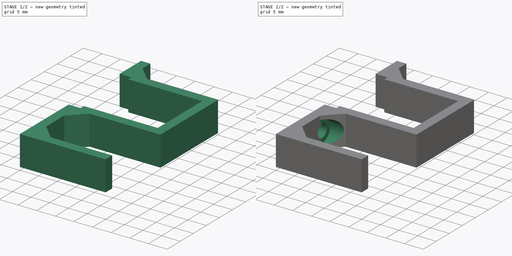
[diagram: build sequence overview — one tinted view per stage of 2, left to right]
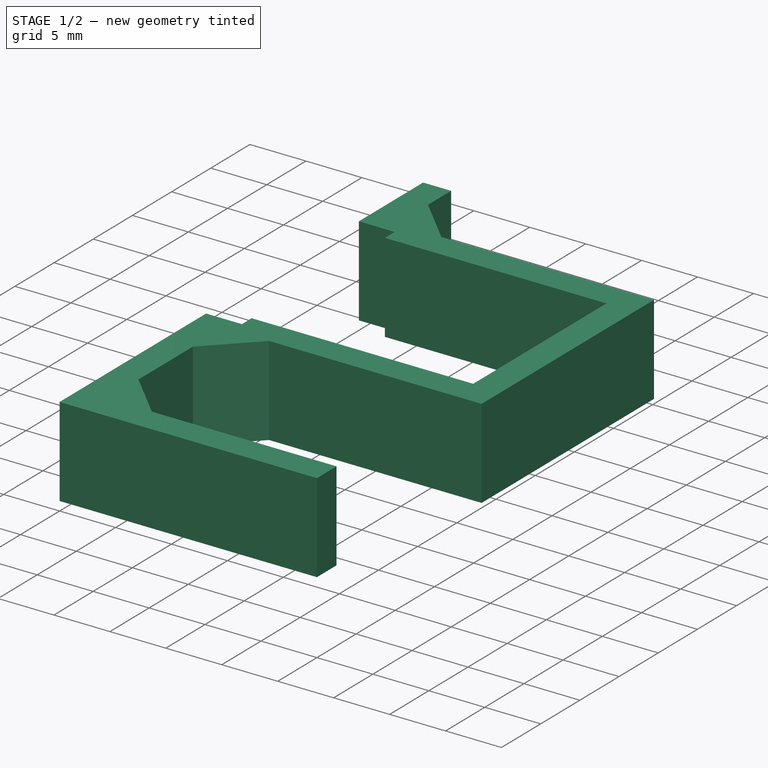
[diagram: stage 1 of 2 — iso view after this stage's code; geometry added in this stage tinted green]
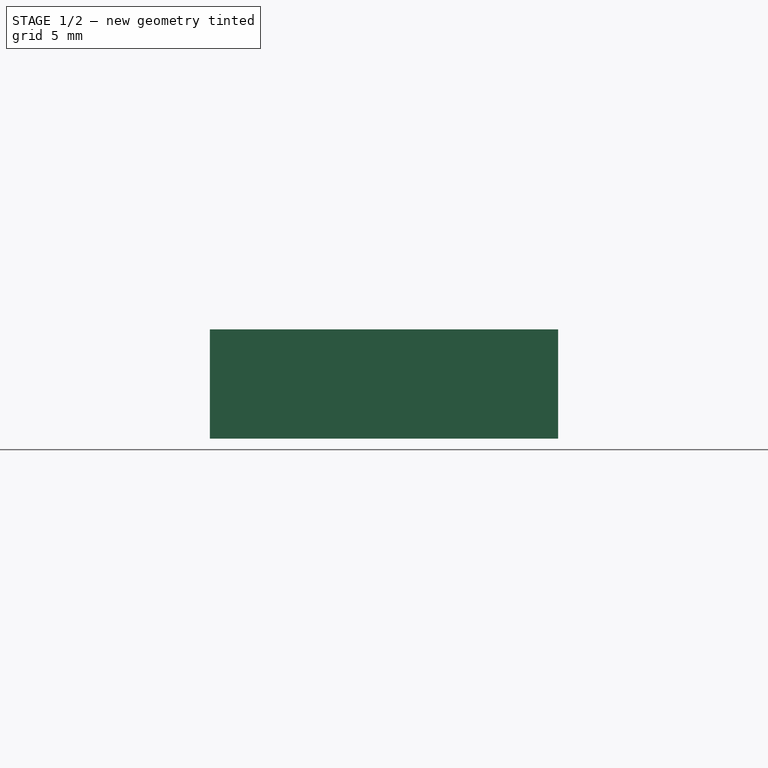
[diagram: stage 1 of 2 — front view after this stage's code; geometry added in this stage tinted green]
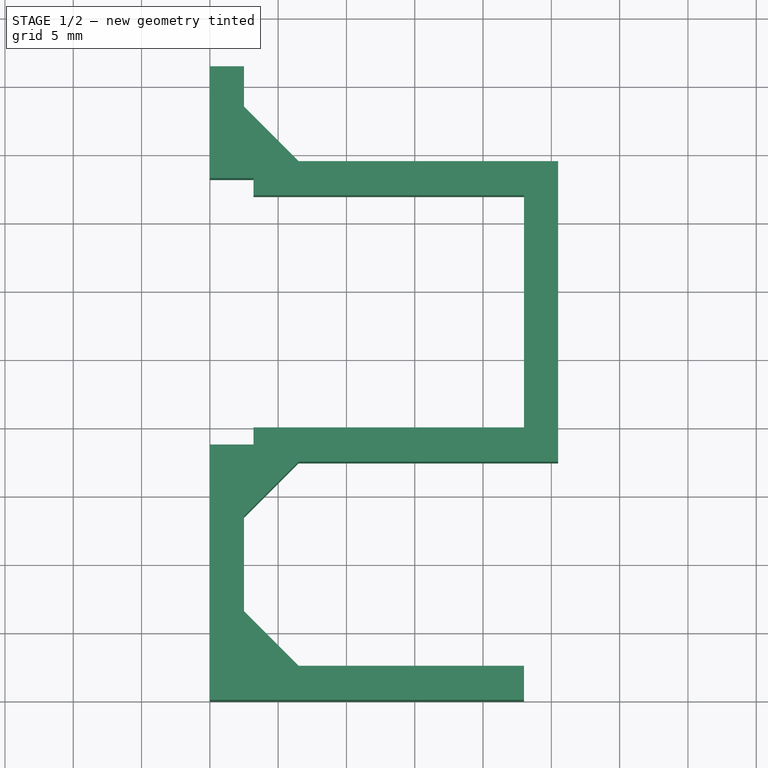
[diagram: stage 1 of 2 — top view after this stage's code; geometry added in this stage tinted green]
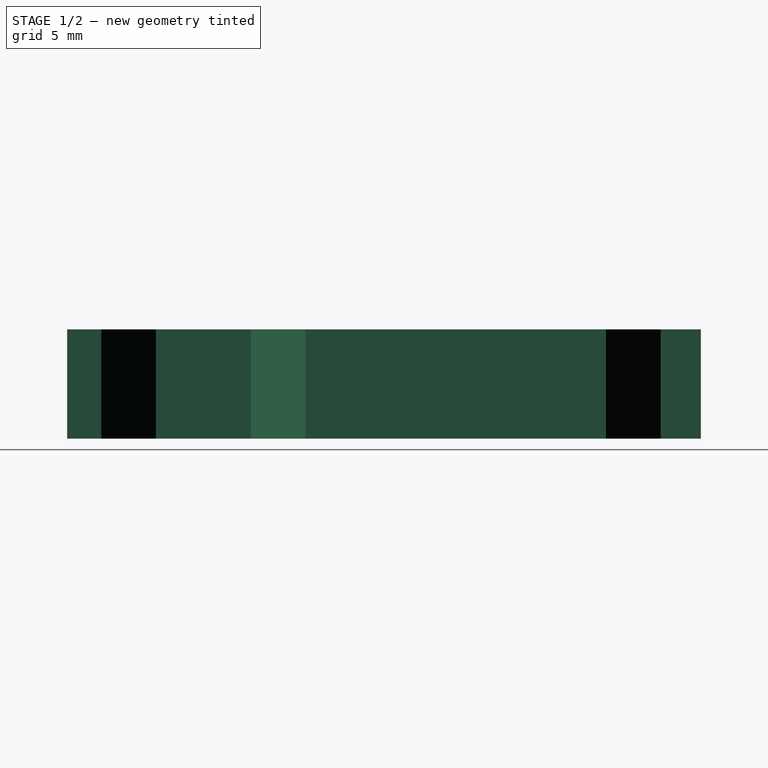
[diagram: stage 1 of 2 — right view after this stage's code; geometry added in this stage tinted green]
FCSTD DOCUMENT  (FreeCAD 1.0R39109 (Git))
Label: PCB locking braket
License: Creative Commons Attribution-ShareAlike 4.0
LicenseURL: https://creativecommons.org/licenses/by-sa/4.0/
objects: Sketcher::SketchObject×3, PartDesign::Pocket×2, PartDesign::Pad×1, PartDesign::Chamfer×1, PartDesign::Body×1
note: 19 computed .brp shape members not serialized (recipe doc carries the construction recipe); baked Part::Feature solids carry a one-line shape summary decoded from their .brp

FEATURE [Sketcher::SketchObject] Sketch
  ArcFitTolerance = 1e-06
  AttachmentSupport = -> [XY_Plane]
  FullyConstrained = true
  MakeInternals = false
  MapMode = 5
  sketch-geometry (24):
    g0: LineSegment StartX=0 StartY=0 StartZ=0 EndX=23 EndY=0 EndZ=0
    g1: LineSegment StartX=23 StartY=0 StartZ=0 EndX=23 EndY=2.5 EndZ=0
    g2: LineSegment StartX=23 StartY=2.5 StartZ=0 EndX=2.5 EndY=2.5 EndZ=0
    g3: LineSegment StartX=2.5 StartY=2.5 StartZ=0 EndX=2.5 EndY=17.45 EndZ=0
    g4: LineSegment StartX=2.5 StartY=17.45 StartZ=0 EndX=25.5 EndY=17.45 EndZ=0
    g5: LineSegment StartX=25.5 StartY=17.45 StartZ=0 EndX=25.5 EndY=39.45 EndZ=0
    g6: LineSegment StartX=23 StartY=36.95 StartZ=0 EndX=23 EndY=19.95 EndZ=0
    g7: LineSegment StartX=0 StartY=46.4 StartZ=0 EndX=2.5 EndY=46.4 EndZ=0
    g8: LineSegment StartX=2.5 StartY=46.4 StartZ=0 EndX=2.5 EndY=39.45 EndZ=0
    g9: LineSegment StartX=2.5 StartY=39.45 StartZ=0 EndX=25.5 EndY=39.45 EndZ=0
    g10: LineSegment [constr] StartX=0 StartY=12.5 StartZ=0 EndX=0 EndY=15.9 EndZ=0
    g11: LineSegment [constr] StartX=0 StartY=44.4 StartZ=0 EndX=0 EndY=41 EndZ=0
    g12: GeomPoint X=0 Y=14.2 Z=0
    g13: GeomPoint X=0 Y=42.7 Z=0
    g14: GeomPoint [constr] X=0 Y=28.45 Z=0
    g15: LineSegment StartX=0 StartY=38.2 StartZ=0 EndX=3.2 EndY=38.2 EndZ=0
    g16: LineSegment StartX=3.2 StartY=38.2 StartZ=0 EndX=3.2 EndY=36.95 EndZ=0
    g17: LineSegment StartX=3.2 StartY=36.95 StartZ=0 EndX=23 EndY=36.95 EndZ=0
    g18: GeomPoint X=23 Y=28.45 Z=0
    g19: LineSegment StartX=0 StartY=46.4 StartZ=0 EndX=0 EndY=38.2 EndZ=0
    g20: LineSegment StartX=0 StartY=0 StartZ=0 EndX=0 EndY=18.7 EndZ=0
    g21: LineSegment StartX=23 StartY=19.95 StartZ=0 EndX=3.2 EndY=19.95 EndZ=0
    g22: LineSegment StartX=3.2 StartY=19.95 StartZ=0 EndX=3.2 EndY=18.7 EndZ=0
    g23: LineSegment StartX=3.2 StartY=18.7 StartZ=0 EndX=0 EndY=18.7 EndZ=0
  constraints (65):
    c: Coincident(g0,g-1)
    c: PointOnObject(g0,g-1)
    c: Coincident(g1,g0)
    c: Vertical(g1)
    c: Horizontal(g2)
    c: Coincident(g3,g2)
    c: Vertical(g3)
    c: Coincident(g4,g3)
    c: Horizontal(g4)
    c: Coincident(g5,g4)
    c: Vertical(g5)
    c: PointOnObject(g7,g-2)
    c: Vertical(g6)
    c: Horizontal(g7)
    c: Coincident(g8,g7)
    c: Vertical(g8)
    c: Coincident(g9,g8)
    c: Coincident(g9,g5)
    c: Horizontal(g9)
    c: DistanceY(g11,g11) = 3.4
    c: DistanceY(g10,g10) = 3.4
    c: Symmetric(g11,g11,g13)
    c: Vertical(g11)
    c: Symmetric(g10,g10,g12)
    c: DistanceY(g0,g10) = 12.5
    c: DistanceY(g12,g13) = 28.5
    c: Symmetric(g12,g13,g14)
    c: DistanceY(g6,g5) = 2.5
    c: DistanceY(g4,g6) = 2.5
    c: DistanceX(g6,g4) = 2.5
    c: DistanceX(g0,g2) = 2.5
    c: DistanceY(g1,g1) = 2.5
    c: Coincident(g2,g1)
    c: DistanceY(g11,g7) = 2
    c: DistanceX(g7,g7) = 2.5
    c: DistanceX(g0,g0) = 23
    c: Horizontal(g15)
    c: Coincident(g16,g15)
    c: Vertical(g16)
    c: Coincident(g17,g16)
    c: Coincident(g17,g6)
    c: Horizontal(g17)
    c: DistanceX(g15,g15) = 3.2
    c: DistanceY(g6,g6) = 17
    c: Symmetric(g6,g6,g18)
    c: Horizontal(g18,g14)
    c: DistanceY(g15,g11) = 2.8
    c: Coincident(g19,g7)
    c: Coincident(g19,g15)
    c: Vertical(g19)
    c: PointOnObject(g13,g19)
    c: Coincident(g20,g0)
    c: Coincident(g21,g6)
    c: Horizontal(g21)
    c: Coincident(g22,g21)
    c: Coincident(g23,g22)
    c: PointOnObject(g23,g-2)
    c: Horizontal(g23)
    c: Coincident(g20,g23)
    c: Vertical(g22)
    c: DistanceY(g10,g20) = 2.8
    c: DistanceX(g23,g23) = 3.2
    c: DistanceX(g0,g6) = 23
    c: PointOnObject(g12,g20)
    c: PointOnObject(g10,g20)
FEATURE [PartDesign::Pad] Pad
  Direction = (0,0,1)
  Length = 8
  Length2 = 10
  Profile = -> Sketch
  ReferenceAxis = -> Sketch [N_Axis]
  Suppressed = false
  Type = 0
FEATURE [PartDesign::Chamfer] Chamfer
  Angle = 45
  Base = -> Pad [Edge11,Edge20,Edge8]
  BaseFeature = -> Pad
  ChamferType = 0
  FlipDirection = false
  Size = 4
  Size2 = 1
  SupportTransform = false
  Suppressed = false
  UseAllEdges = false
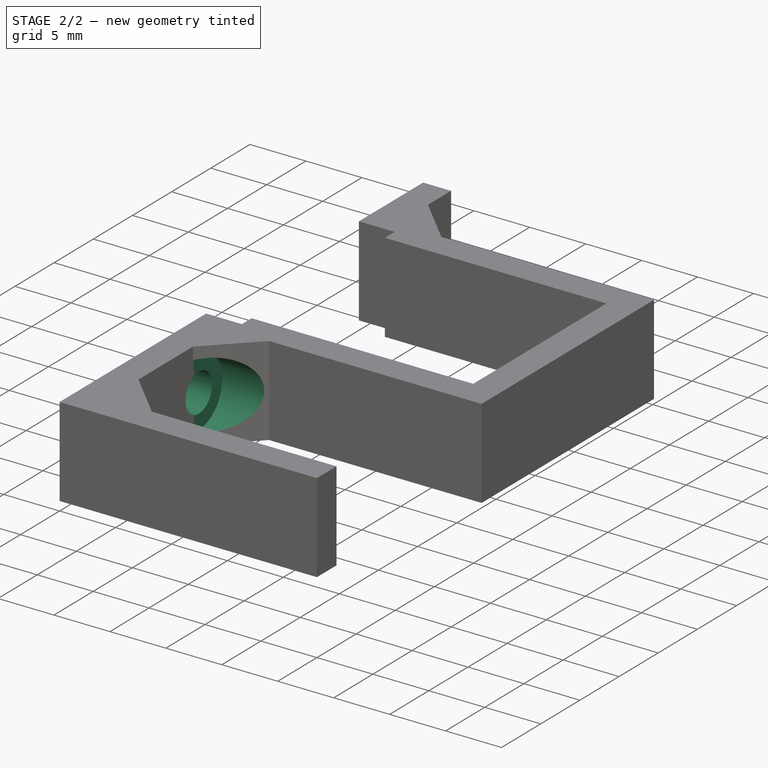
[diagram: stage 2 of 2 — iso view after this stage's code; geometry added in this stage tinted green]
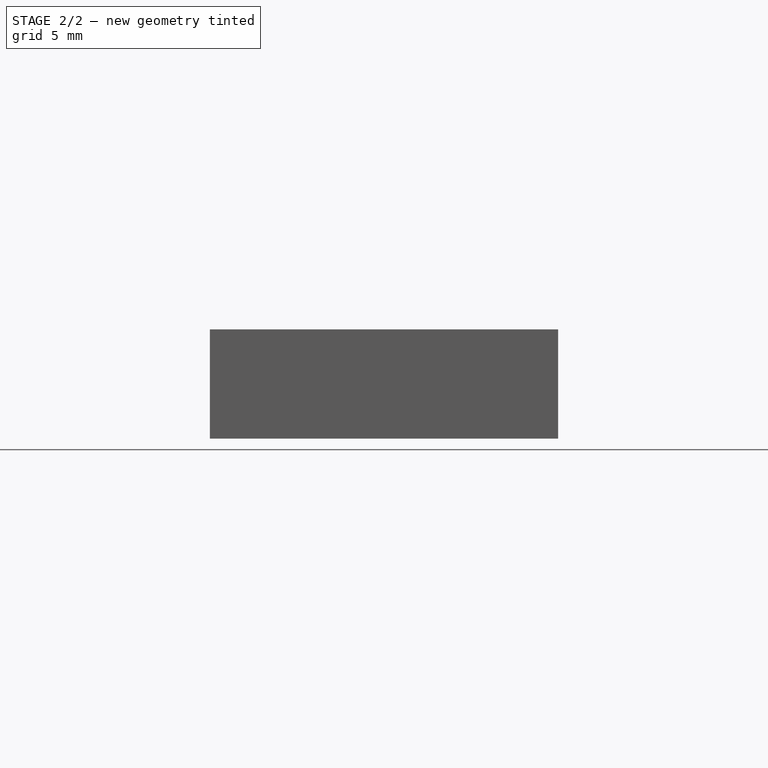
[diagram: stage 2 of 2 — front view after this stage's code; geometry added in this stage tinted green]
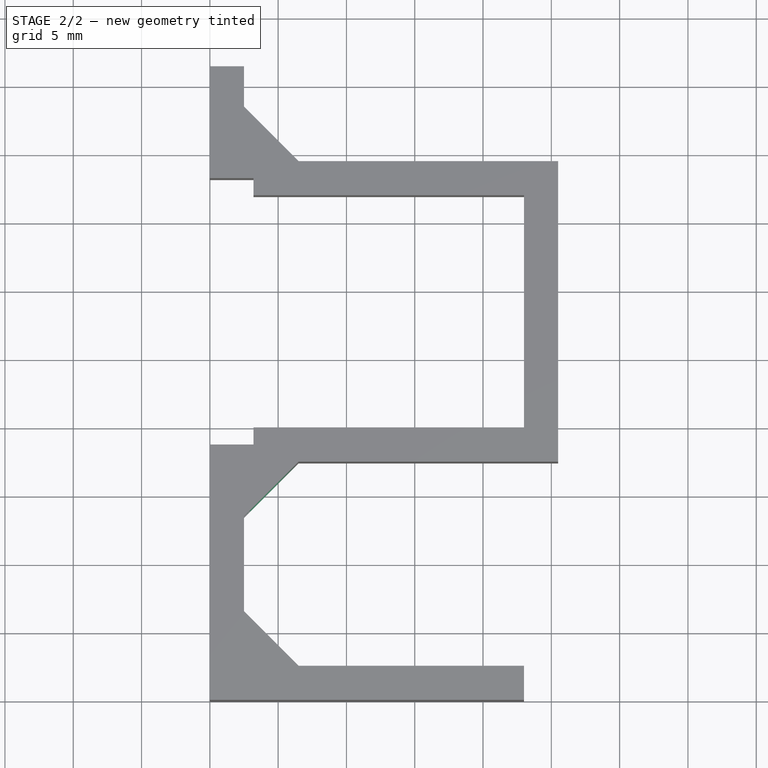
[diagram: stage 2 of 2 — top view after this stage's code; geometry added in this stage tinted green]
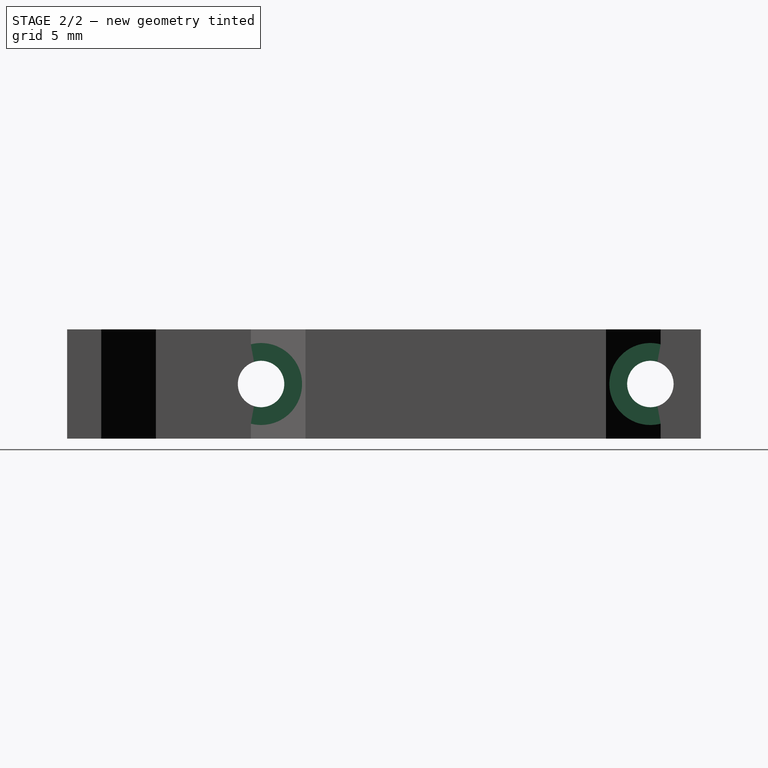
[diagram: stage 2 of 2 — right view after this stage's code; geometry added in this stage tinted green]
FEATURE [Sketcher::SketchObject] Sketch001
  ArcFitTolerance = 1e-06
  AttachmentSupport = -> [Chamfer]
  FullyConstrained = true
  MakeInternals = false
  MapMode = 5
  Placement = pos=(0,0,0) rot=(0.57735,-0.57735,-0.57735;2.0944rad)
  sketch-geometry (2):
    g0: Circle CenterX=-42.7 CenterY=4 CenterZ=0 NormalX=0 NormalY=0 NormalZ=1 AngleXU=0 Radius=1.7
    g1: Circle CenterX=-14.2 CenterY=4 CenterZ=0 NormalX=0 NormalY=0 NormalZ=1 AngleXU=0 Radius=1.7
  constraints (6):
    c: Horizontal(g0,g1)
    c: DistanceX(g0,g1) = 28.5
    c: DistanceY(g-1,g1) = 4
    c: Equal(g1,g0)
    c: Diameter(g1) = 3.4
    c: DistanceX(g1,g-1) = 14.2
FEATURE [PartDesign::Pocket] Pocket
  BaseFeature = -> Chamfer
  Direction = (1,0,0)
  Length = 5
  Length2 = 5
  Profile = -> Sketch001
  ReferenceAxis = -> Sketch001 [N_Axis]
  Suppressed = false
  Type = 1
FEATURE [Sketcher::SketchObject] Sketch002
  ArcFitTolerance = 1e-06
  AttachmentSupport = -> [Pocket]
  ExternalGeometry = -> [Pocket]
  FullyConstrained = true
  MakeInternals = false
  MapMode = 5
  Placement = pos=(2.5,0,0) rot=(0.57735,0.57735,0.57735;2.0944rad)
  sketch-geometry (2):
    g0: Circle CenterX=14.2 CenterY=4 CenterZ=0 NormalX=0 NormalY=0 NormalZ=1 AngleXU=0 Radius=3
    g1: Circle CenterX=42.7 CenterY=4 CenterZ=0 NormalX=0 NormalY=0 NormalZ=1 AngleXU=0 Radius=3
  constraints (4):
    c: Coincident(g0,g-4)
    c: Coincident(g1,g-3)
    c: Equal(g0,g1)
    c: Diameter(g1) = 6
FEATURE [PartDesign::Pocket] Pocket001
  BaseFeature = -> Pocket
  Direction = (-1,0,0)
  Length = 5
  Length2 = 5
  Profile = -> Sketch002
  ReferenceAxis = -> Sketch002 [N_Axis]
  Reversed = true
  Suppressed = false
  Type = 1
FEATURE [PartDesign::Body] Body
  AllowCompound = false
  Group = -> [Sketch,Pad,Chamfer,Sketch001,Pocket,Sketch002,Pocket001]
  Origin = -> Origin
  Tip = -> Pocket001
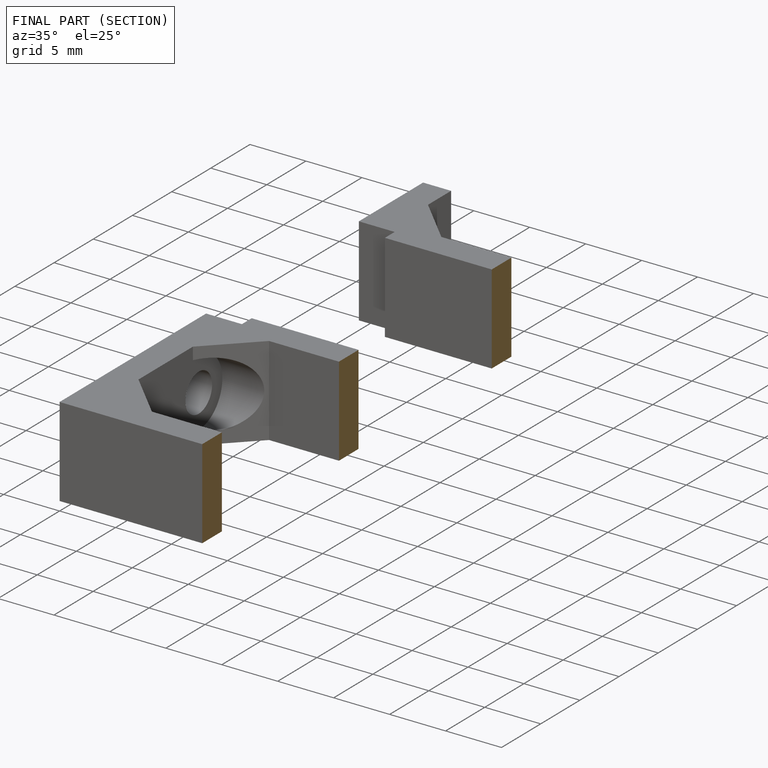
[diagram: finished part — half-section view (interior)]
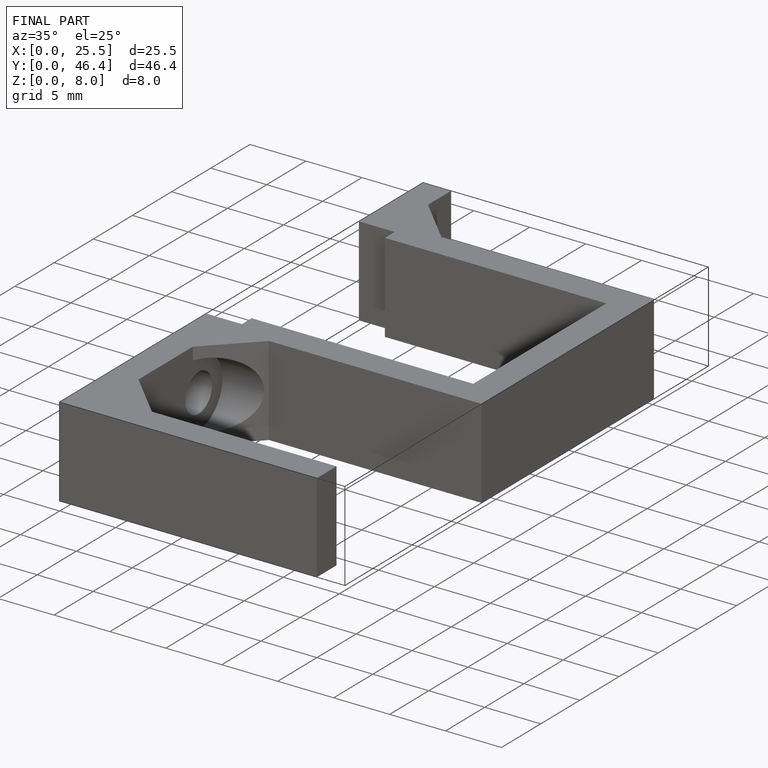
[diagram: finished part — iso view with bounding-box wireframe]
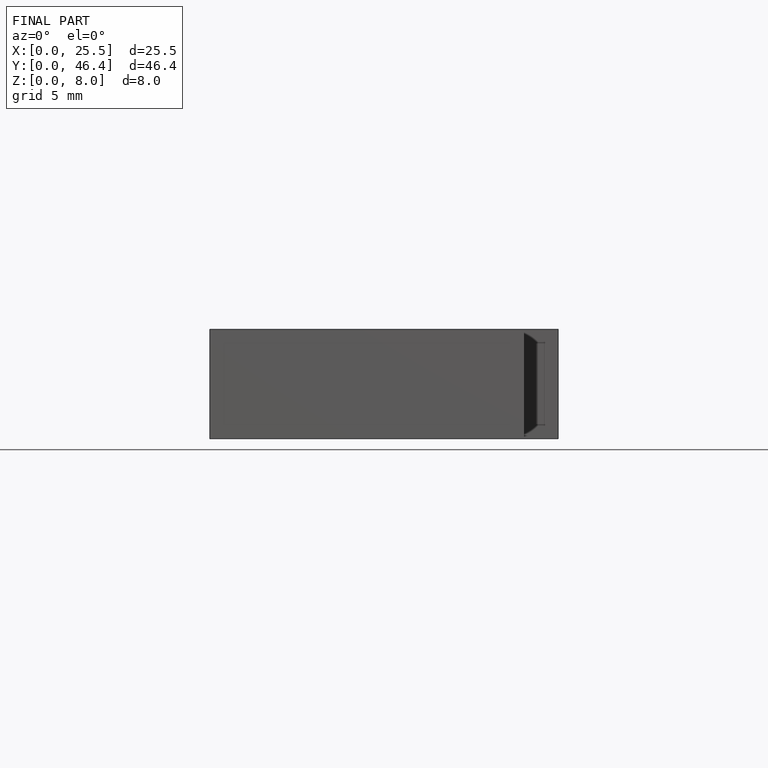
[diagram: finished part — front view with bounding-box wireframe]
